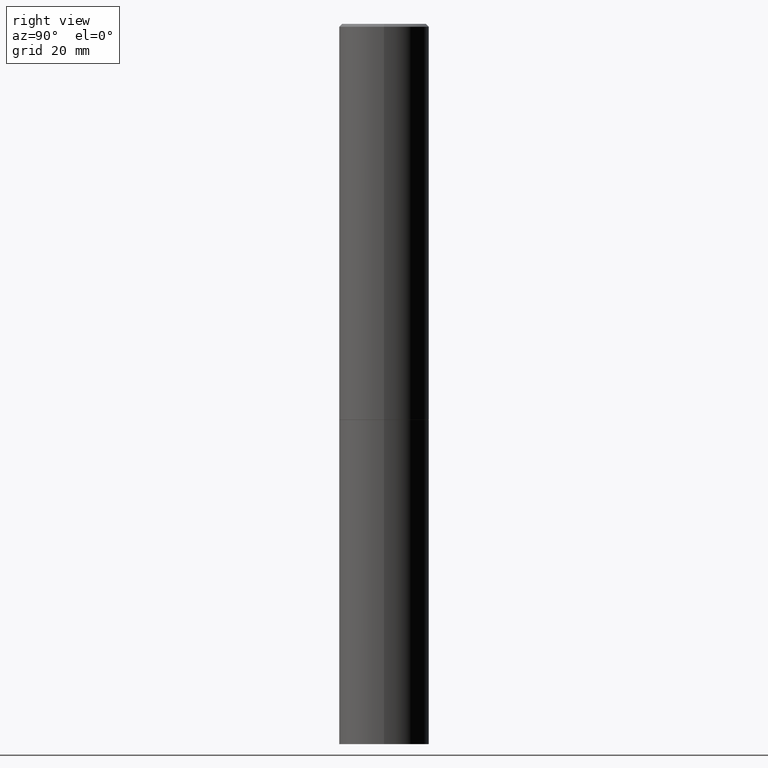
[diagram: clean part render]
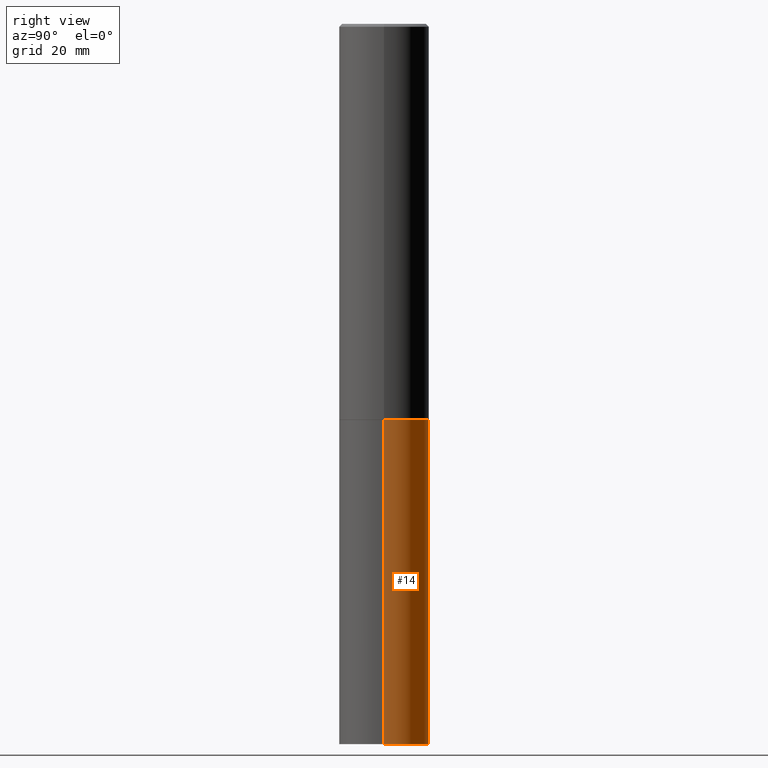
[diagram: same view with one face highlighted and labeled with its STEP entity id]
A machine part, right view. The second image highlights one B-rep face of the part: STEP entity #14.
In plain terms, the highlighted cylindrical surface (partial cylindrical patch) has radius 7.9375 mm, axis along (-0, 0, 1).
Its self-contained STEP definition (entity closure, byte-faithful):
#6 = DIRECTION ( 'NONE',  ( -2.445468806185136877E-29, 3.491481338843145188E-15, 1.000000000000000000 ) ) ;
#14 = ADVANCED_FACE ( 'NONE', ( #312 ), #377, .T. ) ;
#21 = CARTESIAN_POINT ( 'NONE',  ( -0.3125000000000000000, 2.220446049250313081E-15, -1.537167215704658232E-29 ) ) ;
#28 = ORIENTED_EDGE ( 'NONE', *, *, #267, .T. ) ;
#35 = CARTESIAN_POINT ( 'NONE',  ( 0.3125000000000000000, -2.182175836776958347E-15, 1.523805242436230075E-29 ) ) ;
#48 = CARTESIAN_POINT ( 'NONE',  ( 0.3124999999999998890, -1.960131231851933350E-14, -5.000000000000000000 ) ) ;
#62 = EDGE_CURVE ( 'NONE', #169, #93, #291, .T. ) ;
#64 = VERTEX_POINT ( 'NONE', #384 ) ;
#93 = VERTEX_POINT ( 'NONE', #299 ) ;
#100 = CARTESIAN_POINT ( 'NONE',  ( 1.222734403092568523E-28, -1.745740669421572989E-14, -5.000000000000000000 ) ) ;
#126 = DIRECTION ( 'NONE',  ( 1.000000000000000000, -6.982962677686269077E-15, 0.000000000000000000 ) ) ;
#127 = CIRCLE ( 'NONE', #179, 0.3125000000000000000 ) ;
#167 = LINE ( 'NONE', #35, #303 ) ;
#169 = VERTEX_POINT ( 'NONE', #221 ) ;
#174 = DIRECTION ( 'NONE',  ( -2.445468806185136597E-29, 3.491481338843145583E-15, 1.000000000000000000 ) ) ;
#179 = AXIS2_PLACEMENT_3D ( 'NONE', #100, #275, #242 ) ;
#192 = CIRCLE ( 'NONE', #376, 0.3125000000000000000 ) ;
#198 = EDGE_CURVE ( 'NONE', #373, #64, #167, .T. ) ;
#221 = CARTESIAN_POINT ( 'NONE',  ( -0.3124999999999998890, -1.527523085743876996E-14, -5.000000000000000000 ) ) ;
#225 = EDGE_LOOP ( 'NONE', ( #28, #382, #236, #363 ) ) ;
#231 = AXIS2_PLACEMENT_3D ( 'NONE', #250, #174, #279 ) ;
#236 = ORIENTED_EDGE ( 'NONE', *, *, #346, .F. ) ;
#242 = DIRECTION ( 'NONE',  ( 1.000000000000000000, -6.982962677686269077E-15, 0.000000000000000000 ) ) ;
#250 = CARTESIAN_POINT ( 'NONE',  ( 0.000000000000000000, 0.000000000000000000, 0.000000000000000000 ) ) ;
#267 = EDGE_CURVE ( 'NONE', #373, #169, #127, .T. ) ;
#268 = DIRECTION ( 'NONE',  ( -2.445468806185136597E-29, 3.491481338843145583E-15, 1.000000000000000000 ) ) ;
#271 = CARTESIAN_POINT ( 'NONE',  ( 6.725039217009124520E-29, -9.601573681818649859E-15, -2.750000000000000000 ) ) ;
#275 = DIRECTION ( 'NONE',  ( -2.445468806185136597E-29, 3.491481338843145583E-15, 1.000000000000000000 ) ) ;
#279 = DIRECTION ( 'NONE',  ( 1.000000000000000000, -6.982962677686266711E-15, 4.876176775795936353E-29 ) ) ;
#291 = LINE ( 'NONE', #21, #369 ) ;
#299 = CARTESIAN_POINT ( 'NONE',  ( -0.3125000000000000000, -1.130904413876687600E-14, -2.750000000000000000 ) ) ;
#303 = VECTOR ( 'NONE', #6, 39.37007874015748143 ) ;
#312 = FACE_OUTER_BOUND ( 'NONE', #225, .T. ) ;
#321 = DIRECTION ( 'NONE',  ( -2.445468806185136877E-29, 3.491481338843145188E-15, 1.000000000000000000 ) ) ;
#346 = EDGE_CURVE ( 'NONE', #64, #93, #192, .T. ) ;
#363 = ORIENTED_EDGE ( 'NONE', *, *, #198, .F. ) ;
#369 = VECTOR ( 'NONE', #321, 39.37007874015748143 ) ;
#373 = VERTEX_POINT ( 'NONE', #48 ) ;
#376 = AXIS2_PLACEMENT_3D ( 'NONE', #271, #268, #126 ) ;
#377 = CYLINDRICAL_SURFACE ( 'NONE', #231, 0.3125000000000000000 ) ;
#382 = ORIENTED_EDGE ( 'NONE', *, *, #62, .T. ) ;
#384 = CARTESIAN_POINT ( 'NONE',  ( 0.3125000000000000000, -1.178374951859560978E-14, -2.750000000000000000 ) ) ;